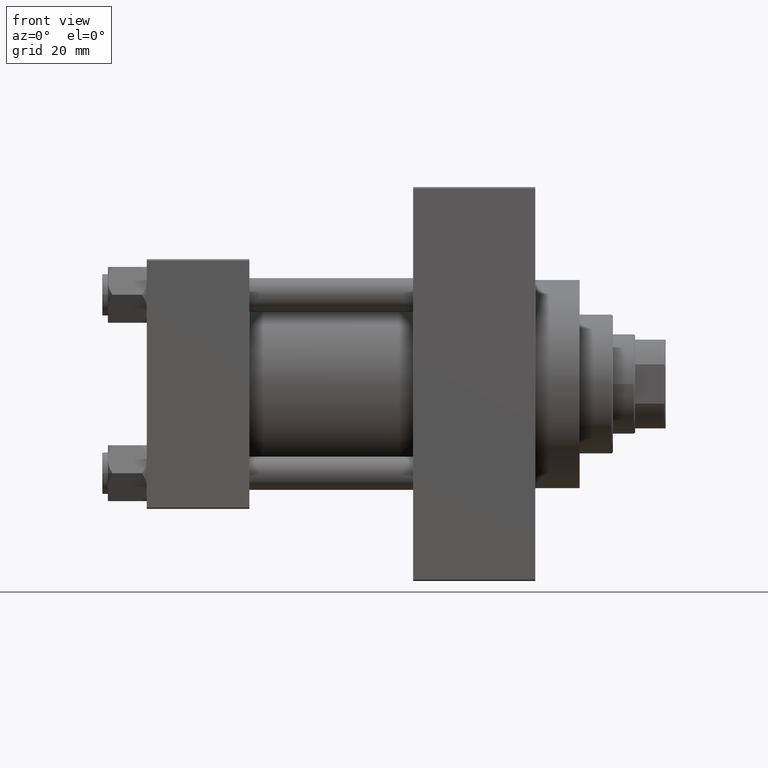
[diagram: clean part render]
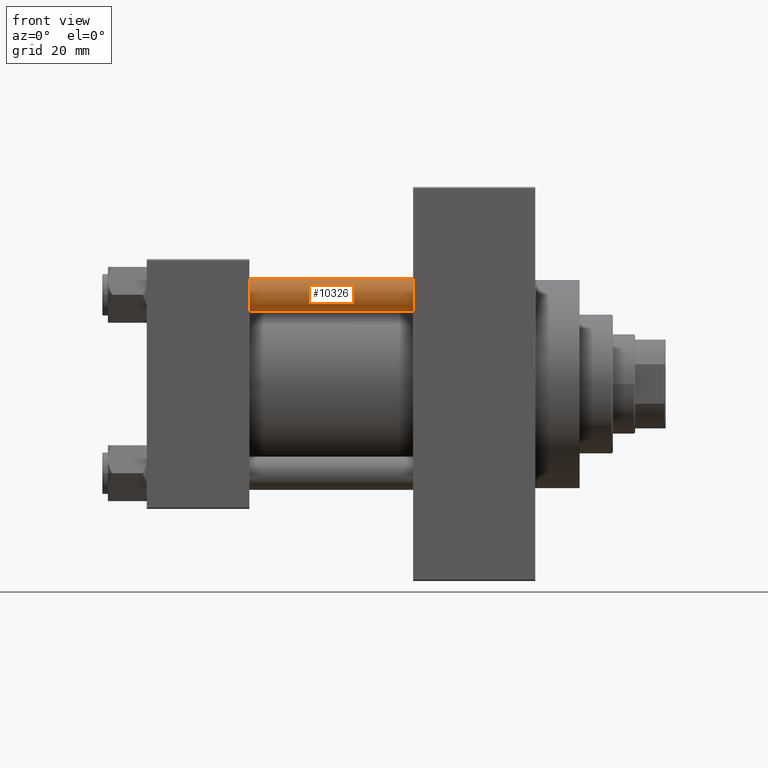
[diagram: same view with one face highlighted and labeled with its STEP entity id]
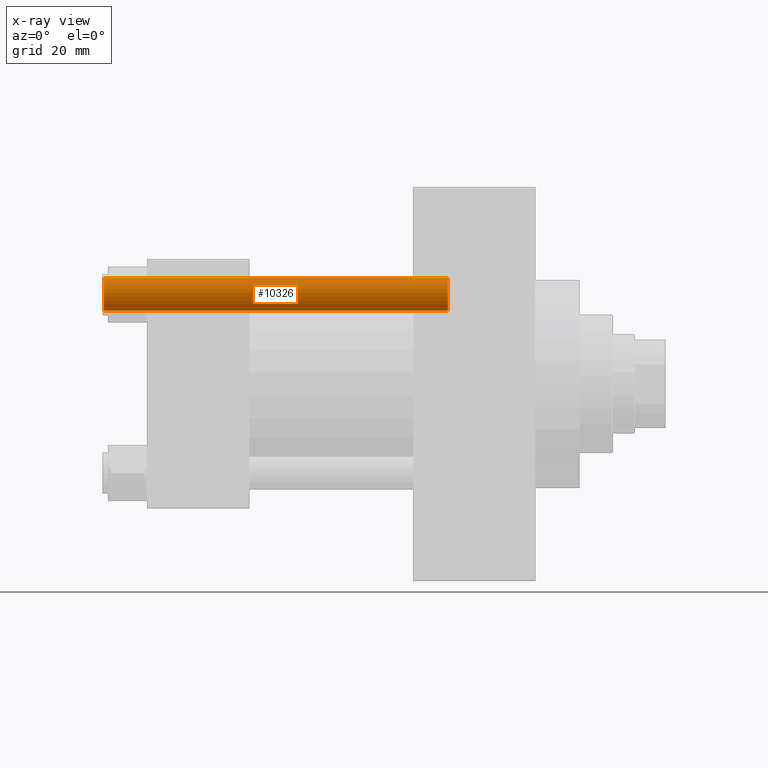
[diagram: x-ray of the same camera — body ghosted, the highlighted face saturated]
A machine part, front view. The second image highlights one B-rep face of the part: STEP entity #10326.
The next image is the same camera in x-ray: the body ghosted, the highlighted face saturated — about 0% of this face is hidden behind the body in this view.
In plain terms, the highlighted cylindrical surface (edge-blend (fillet) strip) has radius 6 mm, axis along (1, 0, 0).
Its self-contained STEP definition (entity closure, byte-faithful):
#967 = EDGE_CURVE ( 'NONE', #34737, #13620, #20077, .T. ) ;
#1158 = CARTESIAN_POINT ( 'NONE',  ( -6.000000000000000888, 0.000000000000000000, 125.0000000000000000 ) ) ;
#1859 = DIRECTION ( 'NONE',  ( -0.000000000000000000, -0.000000000000000000, -1.000000000000000000 ) ) ;
#3527 = ORIENTED_EDGE ( 'NONE', *, *, #8652, .T. ) ;
#5830 = FACE_OUTER_BOUND ( 'NONE', #13316, .T. ) ;
#6548 = AXIS2_PLACEMENT_3D ( 'NONE', #12973, #23690, #30395 ) ;
#7094 = VECTOR ( 'NONE', #31538, 1000.000000000000000 ) ;
#8652 = EDGE_CURVE ( 'NONE', #10115, #34737, #9495, .T. ) ;
#8791 = VECTOR ( 'NONE', #1859, 1000.000000000000000 ) ;
#9380 = CARTESIAN_POINT ( 'NONE',  ( 0.000000000000000000, 0.000000000000000000, 124.5000000000000000 ) ) ;
#9495 = CIRCLE ( 'NONE', #10258, 6.000000000000000888 ) ;
#10115 = VERTEX_POINT ( 'NONE', #20240 ) ;
#10258 = AXIS2_PLACEMENT_3D ( 'NONE', #9380, #23922, #38509 ) ;
#10326 = ADVANCED_FACE ( 'NONE', ( #5830 ), #27035, .T. ) ;
#11024 = ORIENTED_EDGE ( 'NONE', *, *, #34959, .F. ) ;
#11297 = ORIENTED_EDGE ( 'NONE', *, *, #11779, .T. ) ;
#11779 = EDGE_CURVE ( 'NONE', #13620, #24682, #22518, .T. ) ;
#12973 = CARTESIAN_POINT ( 'NONE',  ( 0.000000000000000000, 0.000000000000000000, 125.0000000000000000 ) ) ;
#13316 = EDGE_LOOP ( 'NONE', ( #3527, #39089, #11297, #11024 ) ) ;
#13620 = VERTEX_POINT ( 'NONE', #46528 ) ;
#19686 = DIRECTION ( 'NONE',  ( -0.000000000000000000, -0.000000000000000000, 1.000000000000000000 ) ) ;
#20077 = LINE ( 'NONE', #27717, #7094 ) ;
#20240 = CARTESIAN_POINT ( 'NONE',  ( -6.000000000000000888, 0.000000000000000000, 124.5000000000000000 ) ) ;
#21026 = AXIS2_PLACEMENT_3D ( 'NONE', #33795, #19686, #34263 ) ;
#21634 = CARTESIAN_POINT ( 'NONE',  ( -6.000000000000000888, 0.000000000000000000, 0.4999999999999865663 ) ) ;
#22518 = CIRCLE ( 'NONE', #21026, 6.000000000000000888 ) ;
#23690 = DIRECTION ( 'NONE',  ( -0.000000000000000000, -0.000000000000000000, -1.000000000000000000 ) ) ;
#23922 = DIRECTION ( 'NONE',  ( 0.000000000000000000, 0.000000000000000000, -1.000000000000000000 ) ) ;
#24562 = CARTESIAN_POINT ( 'NONE',  ( 6.000000000000000888, 7.347880794884120722E-16, 124.5000000000000000 ) ) ;
#24682 = VERTEX_POINT ( 'NONE', #21634 ) ;
#27035 = CYLINDRICAL_SURFACE ( 'NONE', #6548, 6.000000000000000888 ) ;
#27717 = CARTESIAN_POINT ( 'NONE',  ( 6.000000000000000888, 7.347880794884120722E-16, 125.0000000000000000 ) ) ;
#30395 = DIRECTION ( 'NONE',  ( -1.000000000000000000, 0.000000000000000000, 0.000000000000000000 ) ) ;
#31538 = DIRECTION ( 'NONE',  ( -0.000000000000000000, -0.000000000000000000, -1.000000000000000000 ) ) ;
#33795 = CARTESIAN_POINT ( 'NONE',  ( 0.000000000000000000, 0.000000000000000000, 0.4999999999999865663 ) ) ;
#34263 = DIRECTION ( 'NONE',  ( 1.000000000000000000, 0.000000000000000000, 0.000000000000000000 ) ) ;
#34737 = VERTEX_POINT ( 'NONE', #24562 ) ;
#34959 = EDGE_CURVE ( 'NONE', #10115, #24682, #44616, .T. ) ;
#38509 = DIRECTION ( 'NONE',  ( 1.000000000000000000, 0.000000000000000000, 0.000000000000000000 ) ) ;
#39089 = ORIENTED_EDGE ( 'NONE', *, *, #967, .T. ) ;
#44616 = LINE ( 'NONE', #1158, #8791 ) ;
#46528 = CARTESIAN_POINT ( 'NONE',  ( 6.000000000000000888, 7.347880794884120722E-16, 0.4999999999999865663 ) ) ;